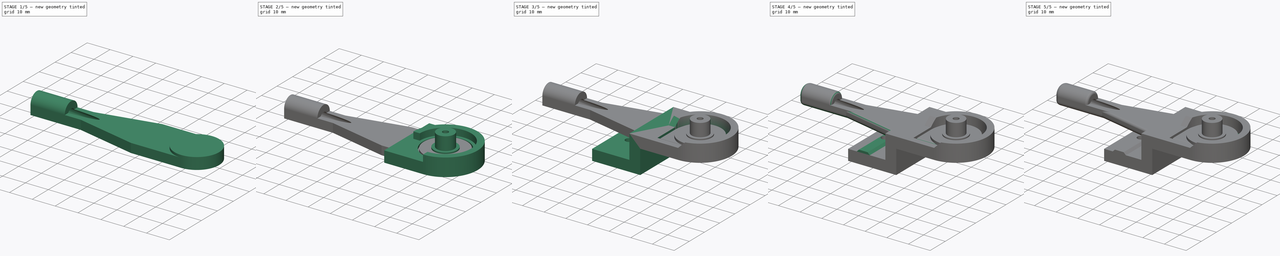
[diagram: build sequence overview — one tinted view per stage of 5, left to right]
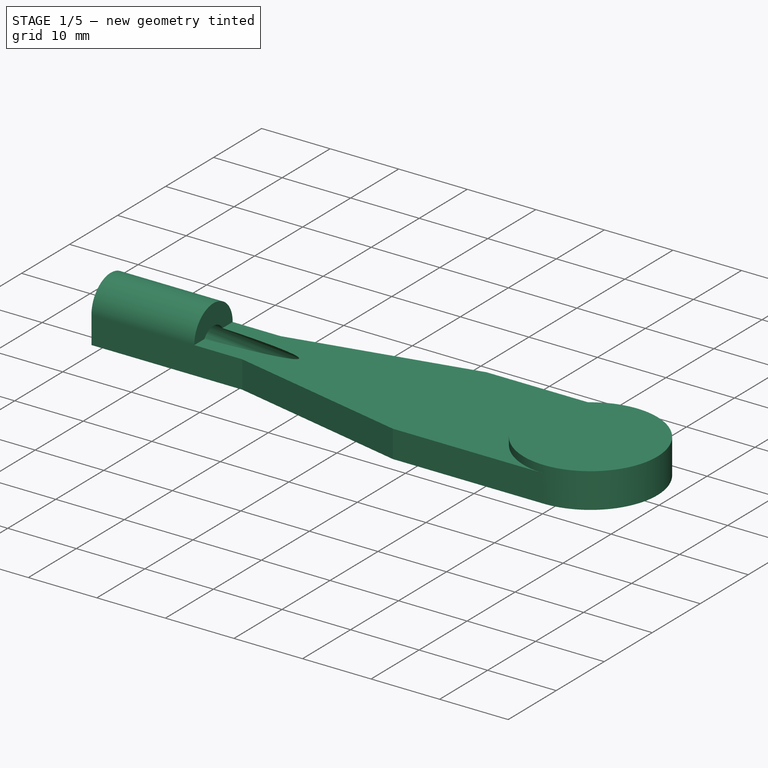
[diagram: stage 1 of 5 — iso view after this stage's code; geometry added in this stage tinted green]
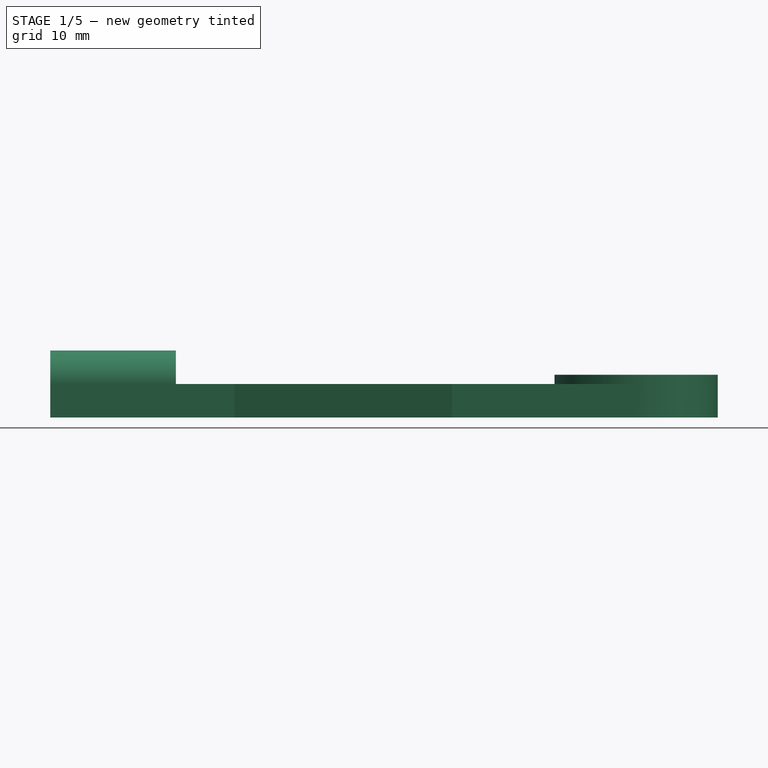
[diagram: stage 1 of 5 — front view after this stage's code; geometry added in this stage tinted green]
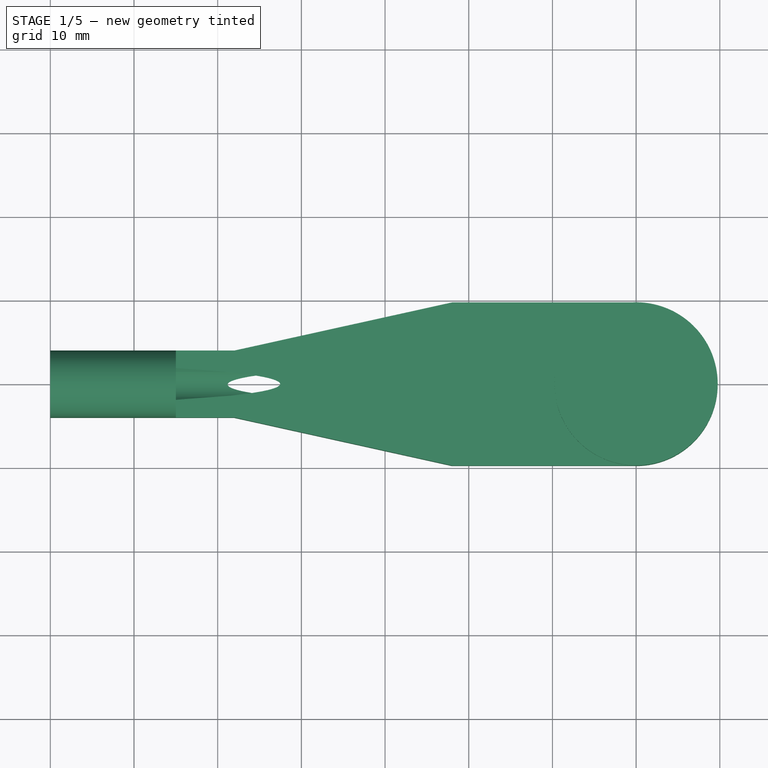
[diagram: stage 1 of 5 — top view after this stage's code; geometry added in this stage tinted green]
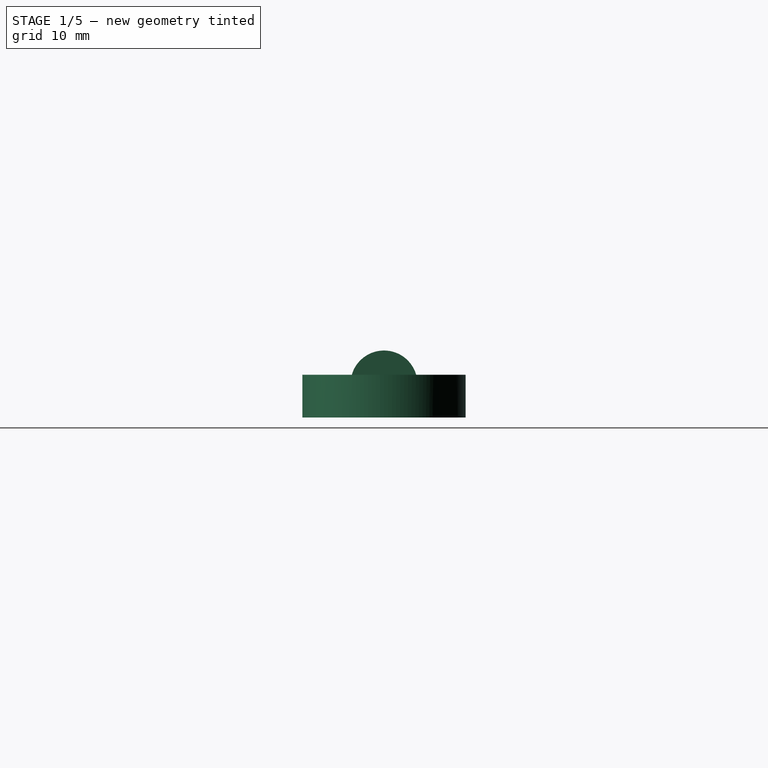
[diagram: stage 1 of 5 — right view after this stage's code; geometry added in this stage tinted green]
FCSTD DOCUMENT  (FreeCAD 1.1R20260223 (Git shallow))
Label: FilamentSupportArm
Comment: An arm on top of the printer that prevents sagging of the PTFE tube
License: All rights reserved
LicenseURL: https://en.wikipedia.org/wiki/All_rights_reserved
objects: Sketcher::SketchObject×17, PartDesign::Pad×12, PartDesign::Pocket×5, PartDesign::Fillet×3, PartDesign::Body×3, App::Point×3, PartDesign::Chamfer×2, App::VarSet×1
note: 103 computed .brp shape members not serialized (recipe doc carries the construction recipe); baked Part::Feature solids carry a one-line shape summary decoded from their .brp

FEATURE [App::VarSet] VarSet
  ArmRadius = 70
  ArmScrewDiameter = 3.4
  ArmScrewHeadDiameter = 7.2
  ArmScrewHeadRecess = 1.4
  ArmScrewTappingDiameter = 2.6
  BearingInnerRing = 8
  BearingOuterRing = 23
  BearingPlasticRingCoupling = 0.6
  BearingRecess = 4
  BearingRingWidth = 2.5
  BearingSuportMarginHeight = 3
  BearingWidth = 7
  LowerCoverDiameter = 19.5
  LowerCoverThickness = 1.1
  OuterStuffing = 3
  PlasticGrip = 0.2
  SupportThickness = 5
  Thickness = 4
  TubeDiameter = 4.5
  TubeGuideLength = 15
  TubeOuterEdge = 8
  armCoverThickness = 2.6
  expr: BearingSuportMarginHeight = BearingWidth - BearingRecess
  expr: LowerCoverDiameter = BearingOuterRing - BearingRingWidth - 1 mm
FEATURE [Sketcher::SketchObject] Sketch
  ArcFitTolerance = 1e-06
  AttachmentSupport = -> [XY_Plane]
  ExternalTypes = [0]
  FullyConstrained = true
  MakeInternals = false
  MapMode = 5
  expr: Constraints[11] = VarSet.TubeOuterEdge
  expr: Constraints[18] = VarSet.ArmRadius
  expr: Constraints[1] = VarSet.BearingInnerRing + VarSet.BearingRingWidth
  expr: Constraints[22] = VarSet.LowerCoverDiameter
  sketch-geometry (9):
    g0: Circle [constr] CenterX=0 CenterY=0 CenterZ=0 NormalX=0 NormalY=0 NormalZ=1 AngleXU=0 Radius=5.25
    g1: LineSegment StartX=0 StartY=9.75 StartZ=0 EndX=-22 EndY=9.75 EndZ=0
    g2: LineSegment StartX=-1.8e-15 StartY=-9.75 StartZ=0 EndX=-22 EndY=-9.75 EndZ=0
    g3: LineSegment StartX=-70 StartY=4 StartZ=0 EndX=-48 EndY=4 EndZ=0
    g4: LineSegment StartX=-70 StartY=-4 StartZ=0 EndX=-48 EndY=-4 EndZ=0
    g5: LineSegment StartX=-48 StartY=4 StartZ=0 EndX=-22 EndY=9.75 EndZ=0
    g6: LineSegment StartX=-22 StartY=-9.75 StartZ=0 EndX=-48 EndY=-4 EndZ=0
    g7: LineSegment StartX=-70 StartY=4 StartZ=0 EndX=-70 EndY=-4 EndZ=0
    g8: ArcOfCircle CenterX=0 CenterY=0 CenterZ=0 NormalX=0 NormalY=0 NormalZ=1 AngleXU=0 Radius=9.75 StartAngle=4.71239 EndAngle=7.85398
  constraints (25):
    c: Coincident(g0,g-1)
    c: Diameter(g0) = 10.5
    c: Horizontal(g1)
    c: Horizontal(g2)
    c: Equal(g2,g1)
    c: Horizontal(g3)
    c: Horizontal(g4)
    c: Equal(g4,g3)
    c: Equal(g3,g1)
    c: Distance(g1) = 22
    c: Symmetric(g3,g4,g-1)
    c: DistanceY(g4,g3) = 8
    c: Coincident(g5,g3)
    c: Coincident(g5,g1)
    c: Coincident(g6,g2)
    c: Coincident(g6,g4)
    c: Coincident(g7,g3)
    c: Coincident(g7,g4)
    c: DistanceX(g4,g0) = 70
    c: Coincident(g8,g0)
    c: PointOnObject(g8,g-2)
    c: PointOnObject(g8,g-2)
    c: Diameter(g8) = 19.5
    c: Coincident(g1,g8)
    c: Coincident(g2,g8)
FEATURE [PartDesign::Pad] Pad  label="Body of Arm"
  Direction = (0,0,1)
  Length = 4
  Length2 = 10
  Profile = -> Sketch
  ReferenceAxis = -> Sketch [N_Axis]
  Refine = true
  SideType = 0
  Suppressed = false
  Type = 0
  Type2 = 0
  expr: Length = VarSet.Thickness
FEATURE [Sketcher::SketchObject] Sketch003
  ArcFitTolerance = 1e-06
  AttachmentSupport = -> [Pad]
  ExternalGeometry = -> [Pad]
  ExternalTypes = [0]
  FullyConstrained = true
  MakeInternals = false
  MapMode = 5
  Placement = pos=(-70,0,0) rot=(0.57735,-0.57735,-0.57735;2.0944rad)
  expr: Constraints[1] = VarSet.TubeOuterEdge / 2
  sketch-geometry (3):
    g0: LineSegment [constr] StartX=0 StartY=0 StartZ=0 EndX=2.221e-13 EndY=4 EndZ=0
    g1: ArcOfCircle CenterX=2.221e-13 CenterY=4 CenterZ=0 NormalX=0 NormalY=0 NormalZ=1 AngleXU=0 Radius=4 StartAngle=4.19e-14 EndAngle=3.14159
    g2: LineSegment StartX=-4 StartY=4 StartZ=0 EndX=4 EndY=4 EndZ=0
  constraints (7):
    c: Coincident(g0,g-1)
    c: Distance(g0) = 4
    c: Coincident(g1,g0)
    c: Coincident(g2,g1)
    c: Coincident(g2,g1)
    c: Coincident(g1,g-4)
    c: Coincident(g1,g-3)
FEATURE [PartDesign::Pad] Pad003  label="Tube Guide"
  BaseFeature = -> Pad
  Direction = (-1,0,0)
  Length = 15
  Length2 = 10
  Profile = -> Sketch003
  ReferenceAxis = -> Sketch003 [N_Axis]
  Refine = true
  Reversed = true
  SideType = 0
  Suppressed = false
  Type = 0
  Type2 = 0
  expr: Length = VarSet.TubeGuideLength
FEATURE [Sketcher::SketchObject] Sketch004
  ArcFitTolerance = 1e-06
  AttachmentOffset = pos=(0,0,1) rot=(1,0,0;-0.08203rad)
  AttachmentSupport = -> [Pad003]
  ExternalGeometry = -> [Pad003]
  ExternalTypes = [0]
  FullyConstrained = true
  MakeInternals = false
  MapMode = 5
  Placement = pos=(-71,0,0) rot=(-0.560904,0.560904,0.608911;4.23548rad)
  expr: Constraints[1] = VarSet.TubeDiameter
  sketch-geometry (1):
    g0: Circle CenterX=1e-16 CenterY=4.06849 CenterZ=0 NormalX=0 NormalY=0 NormalZ=1 AngleXU=0 Radius=2.25
  constraints (2):
    c: Coincident(g0,g-3)
    c: Diameter(g0) = 4.5
FEATURE [PartDesign::Pocket] Pocket  label="Tube Passage"
  BaseFeature = -> Pad003
  Direction = (0.996637,0,-0.0819385)
  Length = 100
  Length2 = 5
  Profile = -> Sketch004
  ReferenceAxis = -> Sketch004 [N_Axis]
  Refine = true
  SideType = 0
  Suppressed = false
  Type = 0
  Type2 = 0
FEATURE [Sketcher::SketchObject] Sketch011
  ArcFitTolerance = 1e-06
  AttachmentSupport = -> [Pocket]
  ExternalTypes = [0]
  FullyConstrained = true
  MakeInternals = false
  MapMode = 5
  Placement = pos=(0,0,4) rot=(0,0,1;0rad)
  expr: Constraints[1] = VarSet.BearingOuterRing - VarSet.BearingRingWidth - 1 mm
  sketch-geometry (1):
    g0: Circle CenterX=0 CenterY=0 CenterZ=0 NormalX=0 NormalY=0 NormalZ=1 AngleXU=0 Radius=9.75
  constraints (2):
    c: Coincident(g0,g-1)
    c: Diameter(g0) = 19.5
FEATURE [PartDesign::Pad] Pad008  label="Lower Bearing Cover"
  BaseFeature = -> Pocket
  Direction = (0,0,1)
  Length = 1.1
  Length2 = 10
  Profile = -> Sketch011
  ReferenceAxis = -> Sketch011 [N_Axis]
  Refine = true
  SideType = 0
  Suppressed = false
  Type = 0
  Type2 = 0
  expr: Length = VarSet.LowerCoverThickness
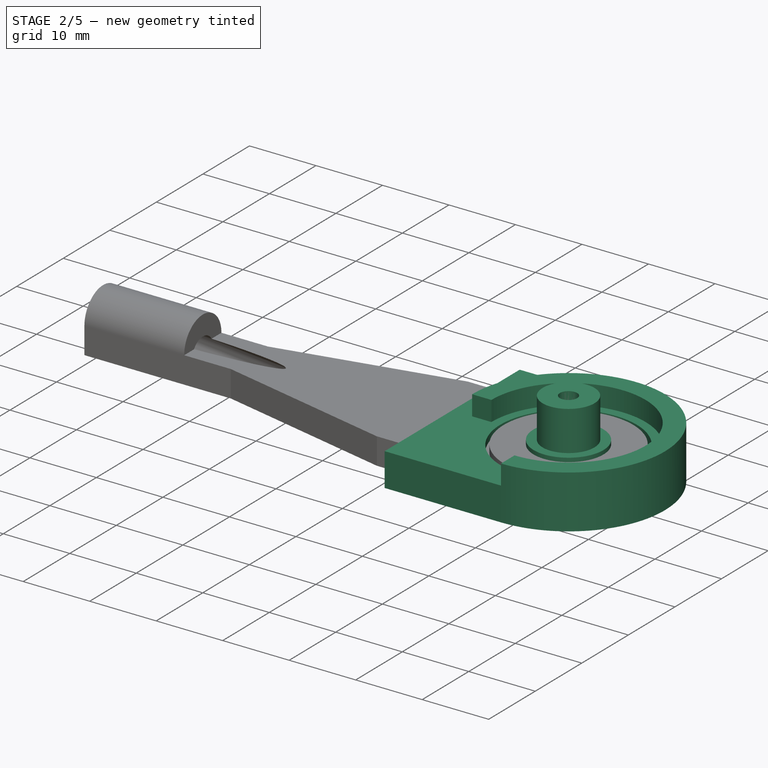
[diagram: stage 2 of 5 — iso view after this stage's code; geometry added in this stage tinted green]
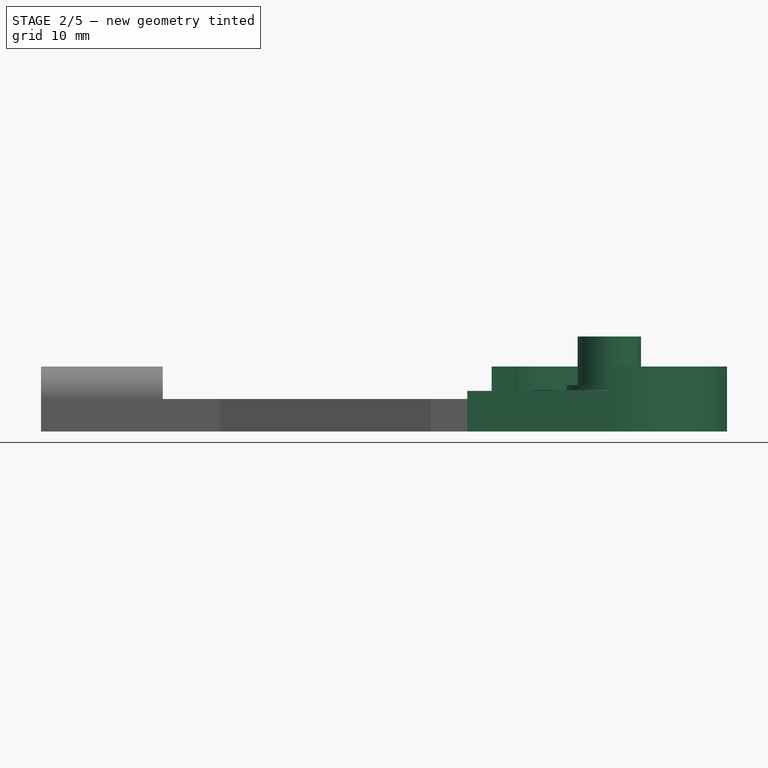
[diagram: stage 2 of 5 — front view after this stage's code; geometry added in this stage tinted green]
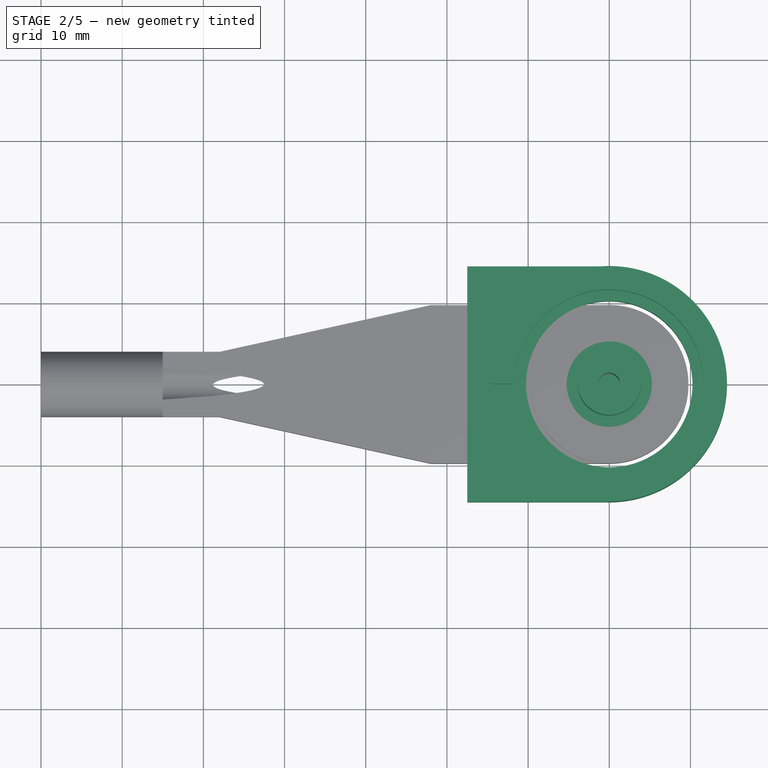
[diagram: stage 2 of 5 — top view after this stage's code; geometry added in this stage tinted green]
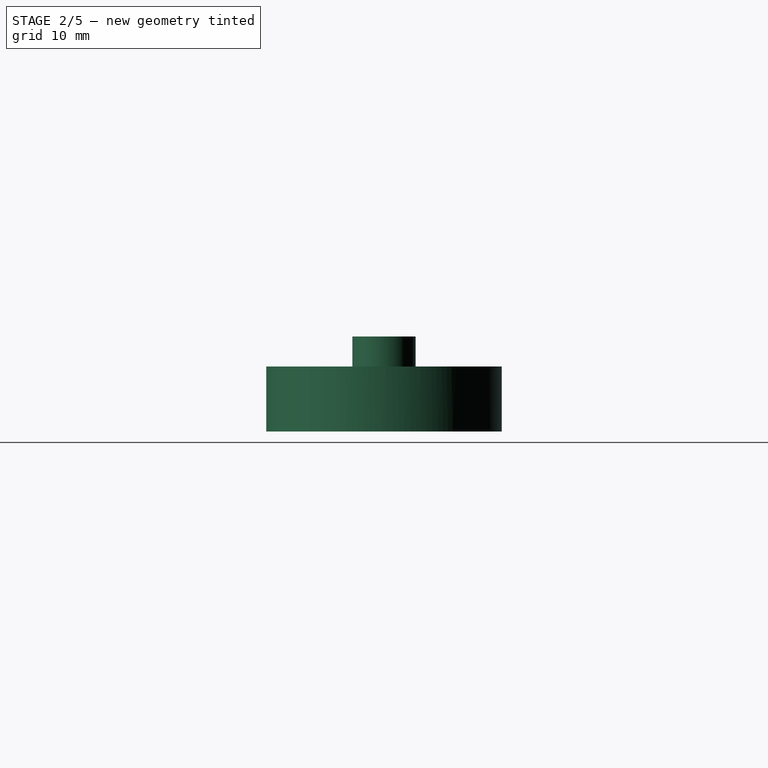
[diagram: stage 2 of 5 — right view after this stage's code; geometry added in this stage tinted green]
FEATURE [Sketcher::SketchObject] Sketch007
  ArcFitTolerance = 1e-06
  AttachmentSupport = -> [XY_Plane002]
  ExternalTypes = [0]
  FullyConstrained = true
  MakeInternals = false
  MapMode = 5
  expr: Constraints[11] = VarSet.BearingOuterRing / 2 + VarSet.OuterStuffing * 2
  expr: Constraints[1] = VarSet.BearingOuterRing - VarSet.BearingRingWidth
  expr: Constraints[21] = VarSet.OuterStuffing
  expr: Constraints[3] = VarSet.BearingOuterRing
  sketch-geometry (8):
    g0: Circle CenterX=0 CenterY=0 CenterZ=0 NormalX=0 NormalY=0 NormalZ=1 AngleXU=0 Radius=10.25
    g1: Circle [constr] CenterX=0 CenterY=0 CenterZ=0 NormalX=0 NormalY=0 NormalZ=1 AngleXU=0 Radius=11.5
    g2: LineSegment StartX=4.4e-15 StartY=14.5 StartZ=0 EndX=-17.5 EndY=14.5 EndZ=0
    g3: LineSegment StartX=-2.7e-15 StartY=-14.5 StartZ=0 EndX=-17.5 EndY=-14.5 EndZ=0
    g4: LineSegment [constr] StartX=14.5 StartY=0 StartZ=0 EndX=11.5 EndY=0 EndZ=0
    g5: LineSegment [constr] StartX=0 StartY=0 StartZ=0 EndX=-17.5 EndY=0 EndZ=0
    g6: LineSegment StartX=-17.5 StartY=14.5 StartZ=0 EndX=-17.5 EndY=-14.5 EndZ=0
    g7: ArcOfCircle CenterX=0 CenterY=0 CenterZ=0 NormalX=0 NormalY=0 NormalZ=1 AngleXU=0 Radius=14.5 StartAngle=4.71239 EndAngle=7.85398
  constraints (23):
    c: Coincident(g0,g-1)
    c: Diameter(g0) = 20.5
    c: Coincident(g1,g0)
    c: Diameter(g1) = 23
    c: Horizontal(g2)
    c: Horizontal(g3)
    c: Equal(g3,g2)
    c: Horizontal(g4)
    c: PointOnObject(g4,g1)
    c: Coincident(g5,g0)
    c: PointOnObject(g5,g-1)
    c: Distance(g5) = 17.5
    c: Coincident(g6,g3)
    c: Coincident(g6,g2)
    c: PointOnObject(g5,g6)
    c: Coincident(g7,g0)
    c: PointOnObject(g7,g-2)
    c: PointOnObject(g7,g-2)
    c: PointOnObject(g4,g7)
    c: Coincident(g7,g2)
    c: Coincident(g7,g3)
    c: Distance(g4) = 3
    c: PointOnObject(g4,g-1)
FEATURE [PartDesign::Pad] Pad005  label="Bearing Support"
  Direction = (0,0,1)
  Length = 5
  Length2 = 10
  Profile = -> Sketch007
  ReferenceAxis = -> Sketch007 [N_Axis]
  Refine = true
  SideType = 0
  Suppressed = false
  Type = 0
  Type2 = 0
  expr: Length = VarSet.SupportThickness
FEATURE [Sketcher::SketchObject] Sketch008
  ArcFitTolerance = 1e-06
  AttachmentSupport = -> [Pad005]
  ExternalTypes = [0]
  FullyConstrained = true
  MakeInternals = false
  MapMode = 5
  Placement = pos=(0,0,5) rot=(0,0,1;0rad)
  expr: Constraints[1] = VarSet.BearingOuterRing + VarSet.OuterStuffing * 2
  expr: Constraints[7] = VarSet.BearingOuterRing + VarSet.PlasticGrip
  sketch-geometry (4):
    g0: ArcOfCircle CenterX=0 CenterY=0 CenterZ=0 NormalX=0 NormalY=0 NormalZ=1 AngleXU=0 Radius=14.5 StartAngle=4.71239 EndAngle=9.42478
    g1: ArcOfCircle CenterX=0 CenterY=0 CenterZ=0 NormalX=0 NormalY=0 NormalZ=1 AngleXU=0 Radius=11.6 StartAngle=4.71239 EndAngle=9.42478
    g2: LineSegment StartX=-14.5 StartY=0 StartZ=0 EndX=-11.6 EndY=4.3e-15 EndZ=0
    g3: LineSegment StartX=0 StartY=-14.5 StartZ=0 EndX=0 EndY=-11.6 EndZ=0
  constraints (12):
    c: Coincident(g0,g-1)
    c: Diameter(g0) = 29
    c: PointOnObject(g0,g-1)
    c: PointOnObject(g0,g-2)
    c: Coincident(g1,g0)
    c: PointOnObject(g1,g-1)
    c: PointOnObject(g1,g-2)
    c: Diameter(g1) = 23.2
    c: Coincident(g2,g0)
    c: Coincident(g2,g1)
    c: Coincident(g3,g0)
    c: Coincident(g3,g1)
FEATURE [PartDesign::Pad] Pad006  label="Bearing Support Margin"
  BaseFeature = -> Pad005
  Direction = (0,0,1)
  Length = 3
  Length2 = 10
  Profile = -> Sketch008
  ReferenceAxis = -> Sketch008 [N_Axis]
  Refine = true
  SideType = 0
  Suppressed = false
  Type = 0
  Type2 = 0
  expr: Length = VarSet.BearingSuportMarginHeight
FEATURE [Sketcher::SketchObject] Sketch012
  ArcFitTolerance = 1e-06
  AttachmentSupport = -> [Pad008]
  ExternalTypes = [0]
  FullyConstrained = true
  MakeInternals = false
  MapMode = 5
  Placement = pos=(0,0,5.1) rot=(0,0,1;0rad)
  expr: Constraints[1] = VarSet.BearingInnerRing + VarSet.BearingRingWidth
  sketch-geometry (1):
    g0: Circle CenterX=0 CenterY=0 CenterZ=0 NormalX=0 NormalY=0 NormalZ=1 AngleXU=0 Radius=5.25
  constraints (2):
    c: Coincident(g0,g-1)
    c: Diameter(g0) = 10.5
FEATURE [PartDesign::Pad] Pad009  label="Inner Bearing Coupling"
  BaseFeature = -> Pad008
  Direction = (0,0,1)
  Length = 0.6
  Length2 = 10
  Profile = -> Sketch012
  ReferenceAxis = -> Sketch012 [N_Axis]
  Refine = true
  SideType = 0
  Suppressed = false
  Type = 0
  Type2 = 0
  expr: Length = VarSet.BearingPlasticRingCoupling
FEATURE [Sketcher::SketchObject] Sketch013
  ArcFitTolerance = 1e-06
  AttachmentSupport = -> [Pad009]
  ExternalTypes = [0]
  FullyConstrained = true
  MakeInternals = false
  MapMode = 5
  Placement = pos=(0,0,5.7) rot=(0,0,1;0rad)
  expr: Constraints[1] = VarSet.BearingInnerRing - VarSet.PlasticGrip
  sketch-geometry (1):
    g0: Circle CenterX=0 CenterY=0 CenterZ=0 NormalX=0 NormalY=0 NormalZ=1 AngleXU=0 Radius=3.9
  constraints (2):
    c: Coincident(g0,g-1)
    c: Diameter(g0) = 7.8
FEATURE [PartDesign::Pad] Pad010  label="Inner Bearing Axis"
  BaseFeature = -> Pad009
  Direction = (0,0,1)
  Length = 6
  Length2 = 10
  Profile = -> Sketch013
  ReferenceAxis = -> Sketch013 [N_Axis]
  Refine = true
  SideType = 0
  Suppressed = false
  Type = 0
  Type2 = 0
  expr: Length = VarSet.BearingWidth - VarSet.BearingPlasticRingCoupling - 2 * VarSet.PlasticGrip
FEATURE [PartDesign::Body] Body002  label="Gantry Support"
  AllowCompound = false
  Group = -> [Sketch007,Pad005,Sketch008,Pad006,Sketch009,Pocket002,Chamfer,Sketch014,Pad011,Sketch015,Pad012,Sketch016,Pocket003,Sketch017,Pad013,Chamfer001]
  Origin = -> Origin002
  Tip = -> Chamfer001
FEATURE [App::Point] Origin003  label="Origin"
  Role = Origin
FEATURE [App::Point] Origin004  label="Origin"
  Role = Origin
FEATURE [App::Point] Origin005  label="Origin"
  Role = Origin
FEATURE [Sketcher::SketchObject] Sketch018
  ArcFitTolerance = 1e-06
  AttachmentSupport = -> [Pad010]
  ExternalTypes = [0]
  FullyConstrained = true
  MakeInternals = false
  MapMode = 5
  Placement = pos=(0,0,11.7) rot=(0,0,1;0rad)
  expr: Constraints[1] = VarSet.ArmScrewTappingDiameter
  sketch-geometry (1):
    g0: Circle CenterX=0 CenterY=0 CenterZ=0 NormalX=0 NormalY=0 NormalZ=1 AngleXU=0 Radius=1.3
  constraints (2):
    c: Coincident(g0,g-1)
    c: Diameter(g0) = 2.6
FEATURE [PartDesign::Pocket] Pocket004  label="Inner Bearing Axis Screw"
  BaseFeature = -> Pad010
  Direction = (0,0,-1)
  Length = 10
  Length2 = 5
  Profile = -> Sketch018
  ReferenceAxis = -> Sketch018 [N_Axis]
  Refine = true
  SideType = 0
  Suppressed = false
  Type = 0
  Type2 = 0
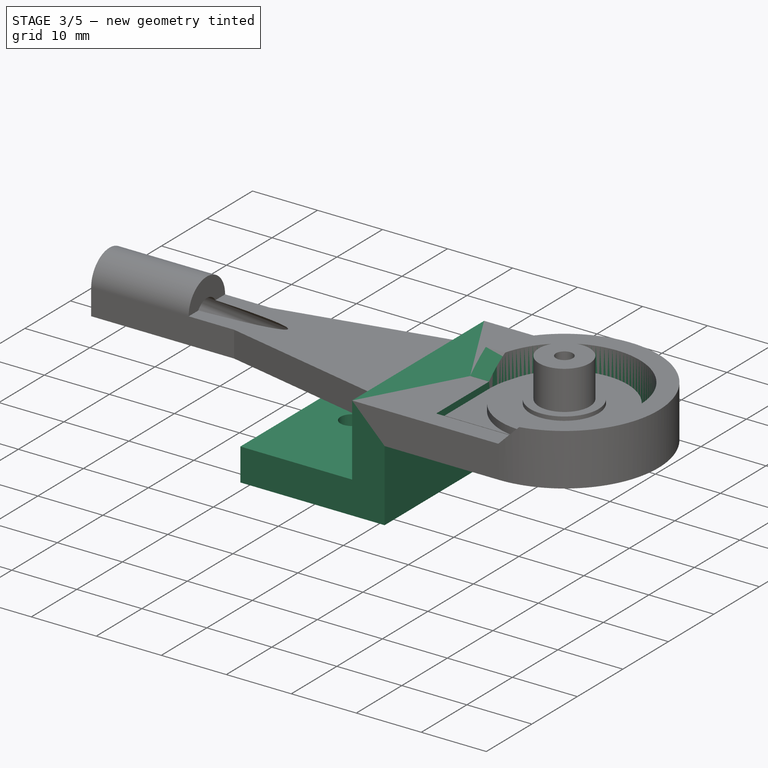
[diagram: stage 3 of 5 — iso view after this stage's code; geometry added in this stage tinted green]
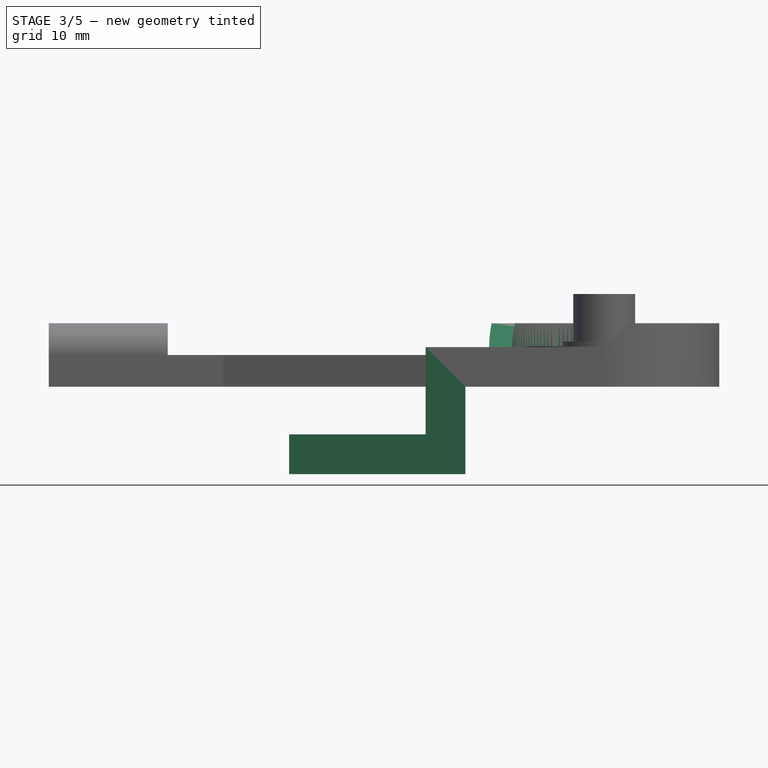
[diagram: stage 3 of 5 — front view after this stage's code; geometry added in this stage tinted green]
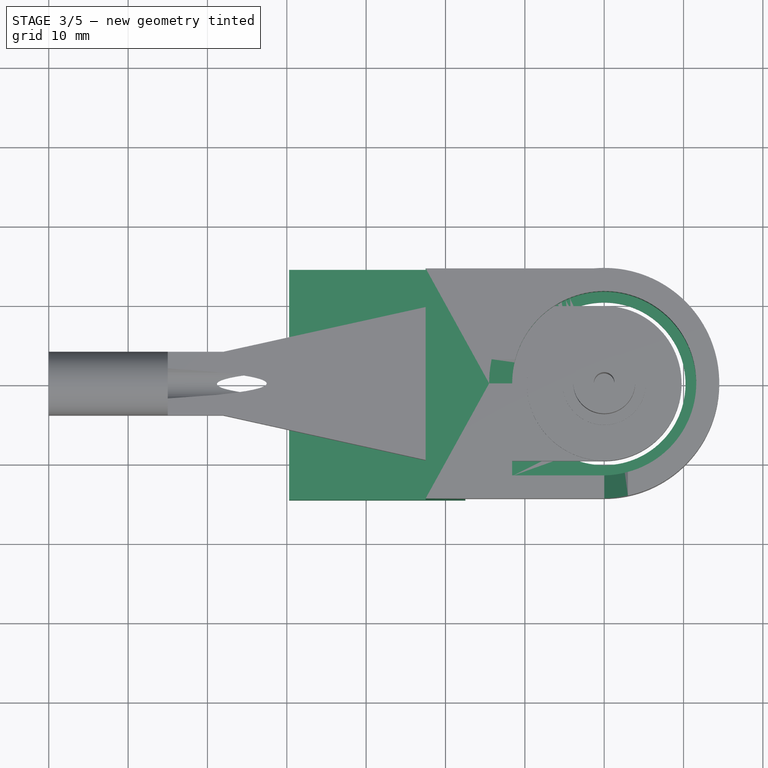
[diagram: stage 3 of 5 — top view after this stage's code; geometry added in this stage tinted green]
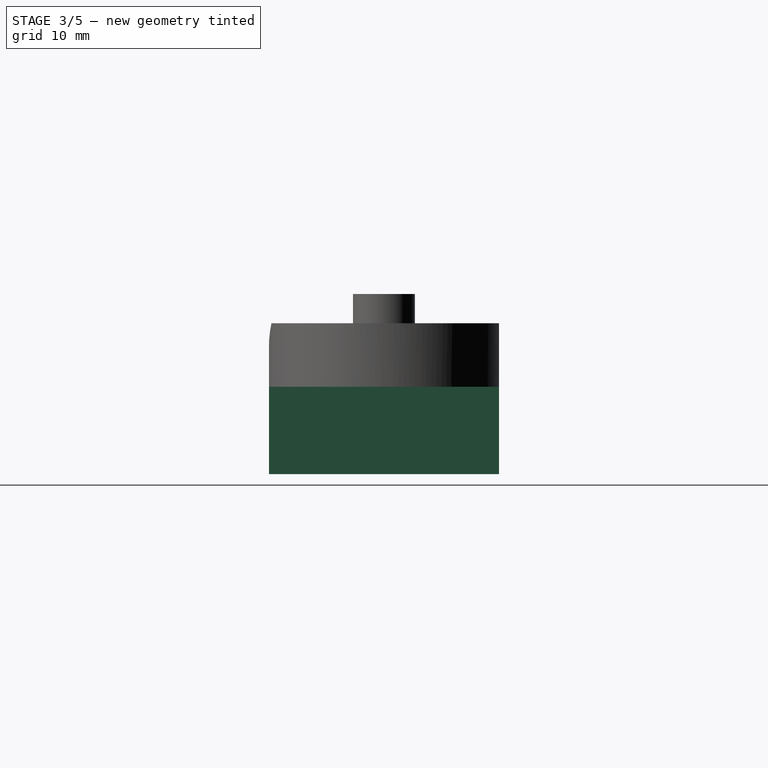
[diagram: stage 3 of 5 — right view after this stage's code; geometry added in this stage tinted green]
FEATURE [Sketcher::SketchObject] Sketch009
  ArcFitTolerance = 1e-06
  AttachmentSupport = -> [Pad006]
  ExternalGeometry = -> [Pad006]
  ExternalTypes = [0]
  FullyConstrained = true
  MakeInternals = false
  MapMode = 5
  Placement = pos=(0,0,5) rot=(0,0,1;0rad)
  sketch-geometry (3):
    g0: ArcOfCircle CenterX=0 CenterY=0 CenterZ=0 NormalX=0 NormalY=0 NormalZ=1 AngleXU=0 Radius=11.6 StartAngle=4.71239 EndAngle=9.42478
    g1: LineSegment StartX=-11.6 StartY=4.3e-15 StartZ=0 EndX=-11.6 EndY=-11.6 EndZ=0
    g2: LineSegment StartX=-2.1e-15 StartY=-11.6 StartZ=0 EndX=-11.6 EndY=-11.6 EndZ=0
  constraints (8):
    c: Coincident(g0,g-1)
    c: Coincident(g0,g-3)
    c: PointOnObject(g0,g-2)
    c: Coincident(g1,g0)
    c: Vertical(g1)
    c: Coincident(g2,g0)
    c: Horizontal(g2)
    c: Coincident(g1,g2)
FEATURE [PartDesign::Pocket] Pocket002  label="Bearing Recess"
  BaseFeature = -> Pad006
  Direction = (0,0,-1)
  Length = 4
  Length2 = 5
  Profile = -> Sketch009
  ReferenceAxis = -> Sketch009 [N_Axis]
  Refine = true
  SideType = 0
  Suppressed = false
  Type = 0
  Type2 = 0
  expr: Length = VarSet.BearingRecess
FEATURE [PartDesign::Body] Body001  label="ArmCover"
  AllowCompound = false
  Group = -> [Sketch005,Pad004,Sketch006,Pocket001,Fillet,Sketch010,Pad007]
  Origin = -> Origin001
  Tip = -> Pad007
FEATURE [PartDesign::Chamfer] Chamfer  label="PrintRamp"
  Angle = 45
  Base = -> Pocket002 [Edge22,Edge24]
  BaseFeature = -> Pocket002
  ChamferType = 0
  FlipDirection = false
  Refine = true
  Size = 2.99
  Size2 = 1
  SupportTransform = false
  Suppressed = false
  UseAllEdges = false
  expr: Size = VarSet.BearingSuportMarginHeight - 0.01 mm
FEATURE [Sketcher::SketchObject] Sketch014
  ArcFitTolerance = 1e-06
  AttachmentSupport = -> [Chamfer]
  ExternalGeometry = -> [Chamfer]
  ExternalTypes = [0]
  FullyConstrained = true
  MakeInternals = false
  MapMode = 5
  Placement = pos=(-17.5,0,0) rot=(0.57735,-0.57735,-0.57735;2.0944rad)
  expr: Constraints[9] = VarSet.Thickness + 12 mm
  sketch-geometry (4):
    g0: LineSegment StartX=-14.5 StartY=5 StartZ=0 EndX=-14.5 EndY=-11 EndZ=0
    g1: LineSegment StartX=-14.5 StartY=-11 StartZ=0 EndX=14.5 EndY=-11 EndZ=0
    g2: LineSegment StartX=14.5 StartY=-11 StartZ=0 EndX=14.5 EndY=5 EndZ=0
    g3: LineSegment StartX=14.5 StartY=5 StartZ=0 EndX=-14.5 EndY=5 EndZ=0
  constraints (10):
    c: Coincident(g0,g1)
    c: Coincident(g1,g2)
    c: Coincident(g2,g3)
    c: Coincident(g3,g0)
    c: Vertical(g0)
    c: Vertical(g2)
    c: Horizontal(g1)
    c: Coincident(g0,g-3)
    c: Coincident(g2,g-3)
    c: Distance(g0) = 16
FEATURE [PartDesign::Pad] Pad011  label="Extruder Offset"
  BaseFeature = -> Chamfer
  Direction = (-1,0,0)
  Length = 5
  Length2 = 10
  Profile = -> Sketch014
  ReferenceAxis = -> Sketch014 [N_Axis]
  Refine = true
  SideType = 0
  Suppressed = false
  Type = 0
  Type2 = 0
  expr: Length = VarSet.SupportThickness
FEATURE [Sketcher::SketchObject] Sketch015
  ArcFitTolerance = 1e-06
  AttachmentSupport = -> [Pad011]
  ExternalGeometry = -> [Pad011]
  ExternalTypes = [0]
  FullyConstrained = true
  MakeInternals = false
  MapMode = 5
  Placement = pos=(0,0,-11) rot=(1,0,0;3.14159rad)
  expr: Constraints[12] = 4 mm + 3 mm
  expr: Constraints[9] = 7 mm + 6 mm + 4 mm + VarSet.PlasticGrip
  sketch-geometry (5):
    g0: LineSegment StartX=-22.5 StartY=14.5 StartZ=0 EndX=-39.7 EndY=14.5 EndZ=0
    g1: LineSegment StartX=-39.7 StartY=14.5 StartZ=0 EndX=-39.7 EndY=-14.5 EndZ=0
    g2: LineSegment StartX=-39.7 StartY=-14.5 StartZ=0 EndX=-22.5 EndY=-14.5 EndZ=0
    g3: LineSegment StartX=-22.5 StartY=-14.5 StartZ=0 EndX=-22.5 EndY=14.5 EndZ=0
    g4: Circle CenterX=-32.7 CenterY=0 CenterZ=0 NormalX=0 NormalY=0 NormalZ=1 AngleXU=0 Radius=1.75
  constraints (13):
    c: Coincident(g0,g1)
    c: Coincident(g1,g2)
    c: Coincident(g2,g3)
    c: Coincident(g3,g0)
    c: Horizontal(g0)
    c: Horizontal(g2)
    c: Vertical(g1)
    c: Coincident(g0,g-3)
    c: Coincident(g2,g-3)
    c: Distance(g2) = 17.2
    c: PointOnObject(g4,g-1)
    c: Diameter(g4) = 3.5
    c: DistanceX(g1,g4) = 7
FEATURE [PartDesign::Pad] Pad012  label="Extruder Fixing"
  BaseFeature = -> Pad011
  Direction = (0,0,-1)
  Length = 5
  Length2 = 10
  Profile = -> Sketch015
  ReferenceAxis = -> Sketch015 [N_Axis]
  Refine = true
  Reversed = true
  SideType = 0
  Suppressed = false
  Type = 0
  Type2 = 0
  expr: Length = VarSet.SupportThickness
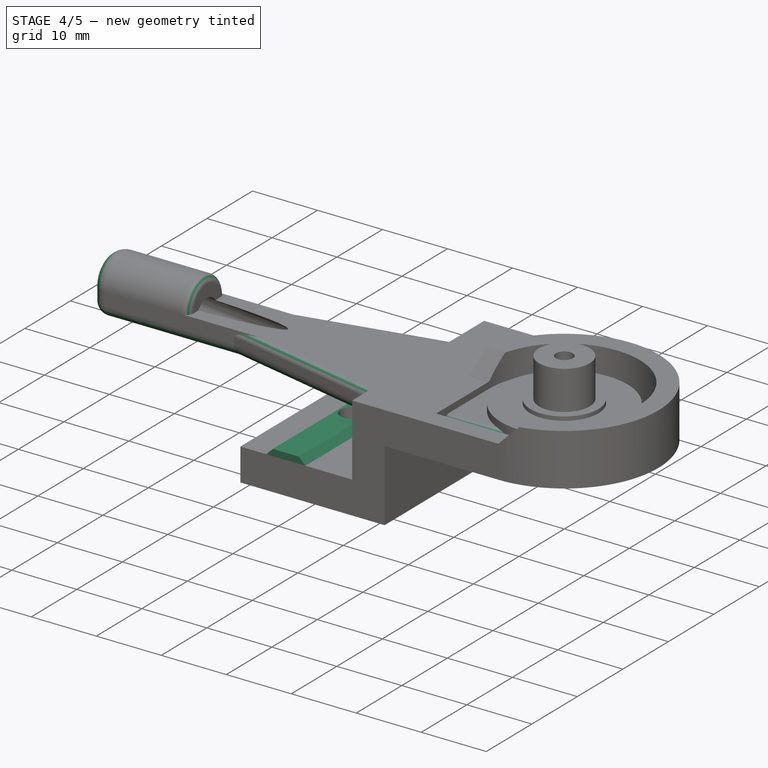
[diagram: stage 4 of 5 — iso view after this stage's code; geometry added in this stage tinted green]
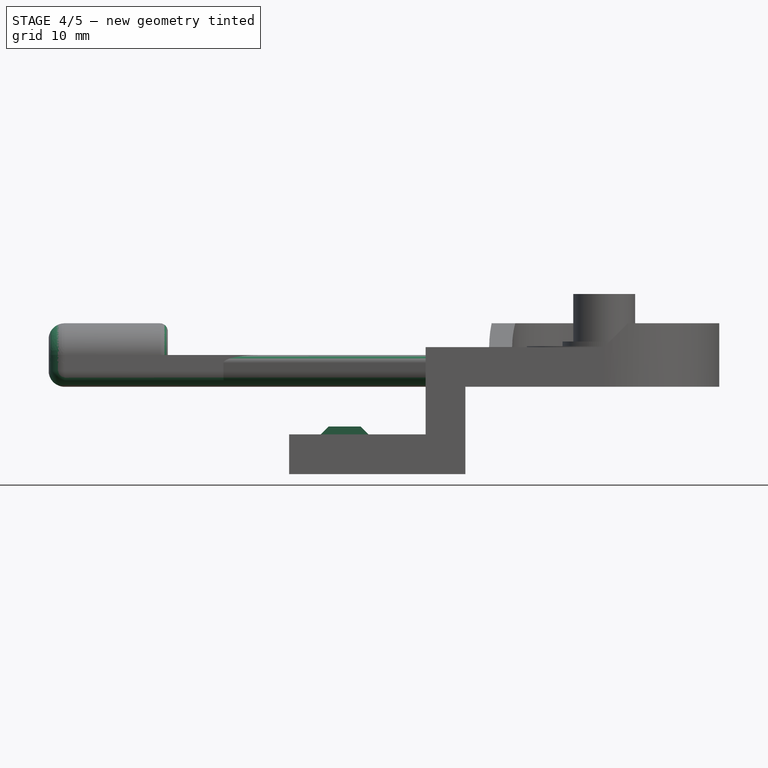
[diagram: stage 4 of 5 — front view after this stage's code; geometry added in this stage tinted green]
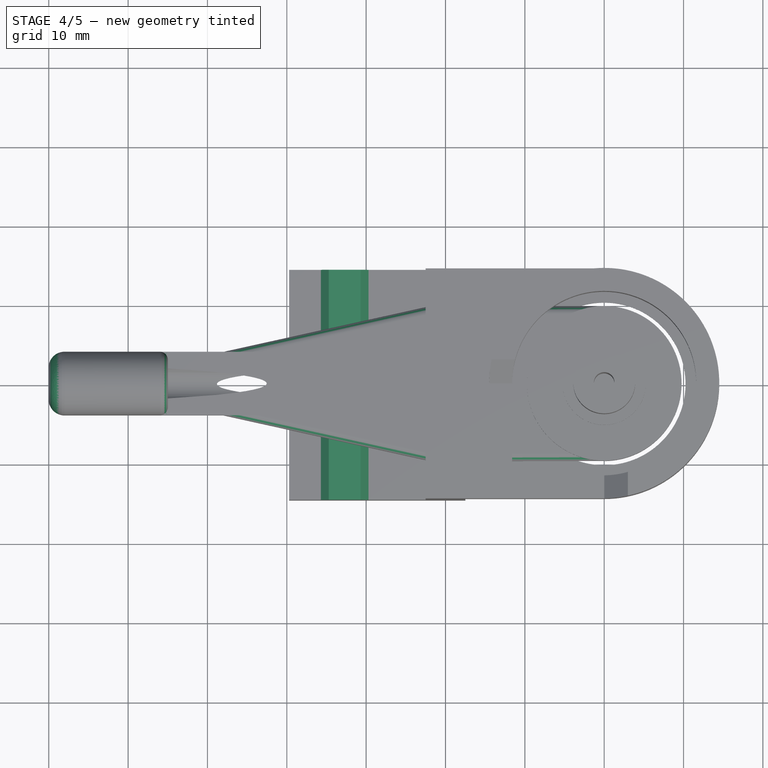
[diagram: stage 4 of 5 — top view after this stage's code; geometry added in this stage tinted green]
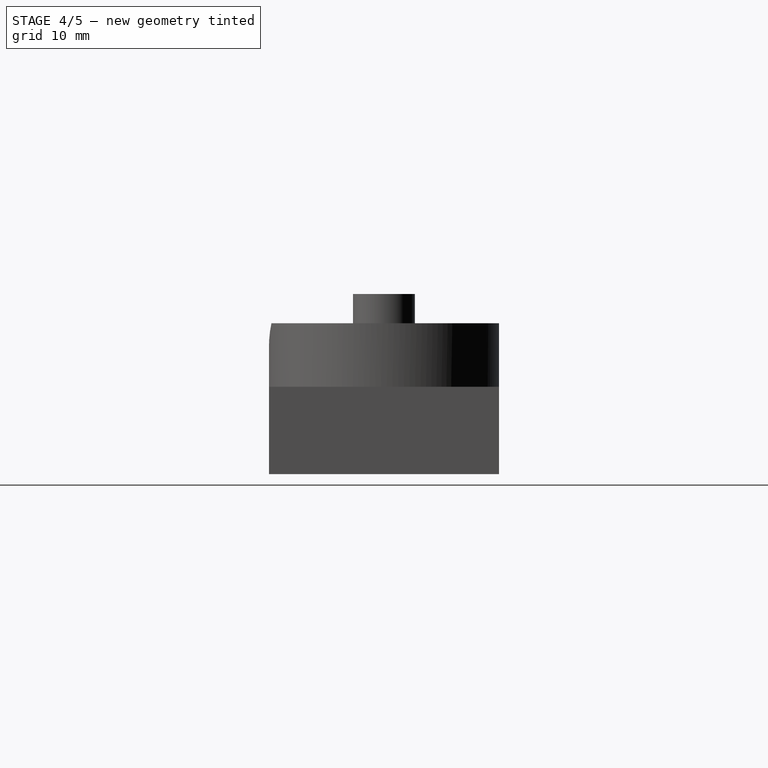
[diagram: stage 4 of 5 — right view after this stage's code; geometry added in this stage tinted green]
FEATURE [Sketcher::SketchObject] Sketch016
  ArcFitTolerance = 1e-06
  AttachmentSupport = -> [Pad012]
  ExternalGeometry = -> [Pad012]
  ExternalTypes = [0]
  FullyConstrained = false
  MakeInternals = false
  MapMode = 5
  Placement = pos=(0,0,-11) rot=(1,0,0;3.14159rad)
  sketch-geometry (1):
    g0: Circle CenterX=-32.7 CenterY=0 CenterZ=0 NormalX=0 NormalY=0 NormalZ=1 AngleXU=0 Radius=4.75
  constraints (1):
    c: Diameter(g0) = 9.5
FEATURE [PartDesign::Pocket] Pocket003  label="Extruder Screw Pocket"
  BaseFeature = -> Pad012
  Direction = (0,0,1)
  Length = 2.9
  Length2 = 5
  Profile = -> Sketch016
  ReferenceAxis = -> Sketch016 [N_Axis]
  Refine = true
  SideType = 0
  Suppressed = false
  Type = 0
  Type2 = 0
FEATURE [Sketcher::SketchObject] Sketch017
  ArcFitTolerance = 1e-06
  AttachmentSupport = -> [Pocket003]
  ExternalGeometry = -> [Pocket003]
  ExternalTypes = [0]
  FullyConstrained = true
  MakeInternals = false
  MapMode = 5
  Placement = pos=(0,0,-6) rot=(0,0,1;0rad)
  sketch-geometry (6):
    g0: LineSegment [constr] StartX=-32.7 StartY=14.5 StartZ=0 EndX=-32.7 EndY=-14.5 EndZ=0
    g1: LineSegment StartX=-35.7 StartY=14.5 StartZ=0 EndX=-35.7 EndY=-14.5 EndZ=0
    g2: LineSegment StartX=-35.7 StartY=-14.5 StartZ=0 EndX=-29.7 EndY=-14.5 EndZ=0
    g3: LineSegment StartX=-29.7 StartY=-14.5 StartZ=0 EndX=-29.7 EndY=14.5 EndZ=0
    g4: LineSegment StartX=-29.7 StartY=14.5 StartZ=0 EndX=-35.7 EndY=14.5 EndZ=0
    g5: Circle CenterX=-32.7 CenterY=0 CenterZ=0 NormalX=0 NormalY=0 NormalZ=1 AngleXU=0 Radius=1.75
  constraints (17):
    c: Vertical(g0)
    c: PointOnObject(g0,g-4)
    c: PointOnObject(g0,g-5)
    c: PointOnObject(g-3,g0)
    c: Coincident(g1,g2)
    c: Coincident(g2,g3)
    c: Coincident(g3,g4)
    c: Coincident(g4,g1)
    c: Vertical(g1)
    c: Vertical(g3)
    c: Horizontal(g2)
    c: Horizontal(g4)
    c: Symmetric(g1,g3,g0)
    c: Distance(g2) = 6
    c: PointOnObject(g2,g-5)
    c: Coincident(g5,g-3)
    c: Equal(g5,g-3)
FEATURE [PartDesign::Pad] Pad013  label="Extruder Guide"
  BaseFeature = -> Pocket003
  Direction = (0,0,1)
  Length = 1
  Length2 = 10
  Profile = -> Sketch017
  ReferenceAxis = -> Sketch017 [N_Axis]
  Refine = true
  SideType = 0
  Suppressed = false
  Type = 0
  Type2 = 0
FEATURE [PartDesign::Chamfer] Chamfer001  label="Extruder Guide Finishing"
  Angle = 45
  Base = -> Pad013 [Edge61,Edge64]
  BaseFeature = -> Pad013
  ChamferType = 0
  FlipDirection = false
  Refine = true
  Size = 0.99
  Size2 = 1
  SupportTransform = false
  Suppressed = false
  UseAllEdges = false
FEATURE [PartDesign::Fillet] Fillet001  label="Edge Roundings"
  Base = -> Pocket004 [Edge4,Edge26,Edge13,Edge25,Edge38]
  BaseFeature = -> Pocket004
  Radius = 1
  Refine = true
  SupportTransform = false
  Suppressed = false
  UseAllEdges = false
FEATURE [PartDesign::Fillet] Fillet002  label="Lower Edges"
  Base = -> Fillet001 [Edge18,Edge16,Edge17,Edge7,Edge3,Edge15,Edge14,Edge50]
  BaseFeature = -> Fillet001
  Radius = 2
  Refine = true
  SupportTransform = false
  Suppressed = false
  UseAllEdges = false
FEATURE [PartDesign::Body] Body  label="PTFE Tube Arm"
  AllowCompound = false
  Group = -> [Sketch,Pad,Sketch003,Pad003,Sketch004,Pocket,Sketch011,Pad008,Sketch012,Pad009,Sketch013,Pad010,Pocket004,Sketch018,Fillet001,Fillet002]
  Origin = -> Origin
  Tip = -> Fillet002
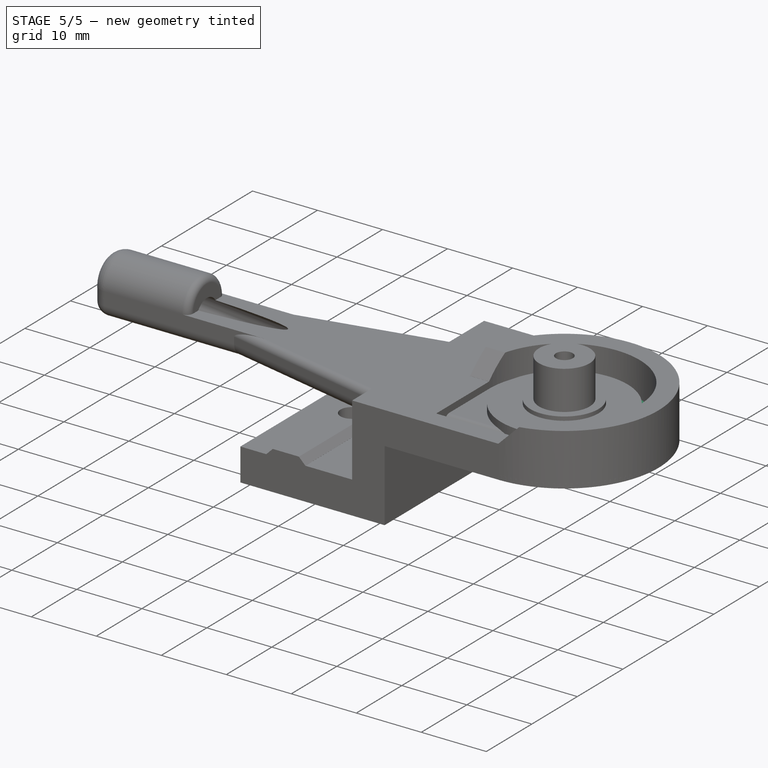
[diagram: stage 5 of 5 — iso view after this stage's code; geometry added in this stage tinted green]
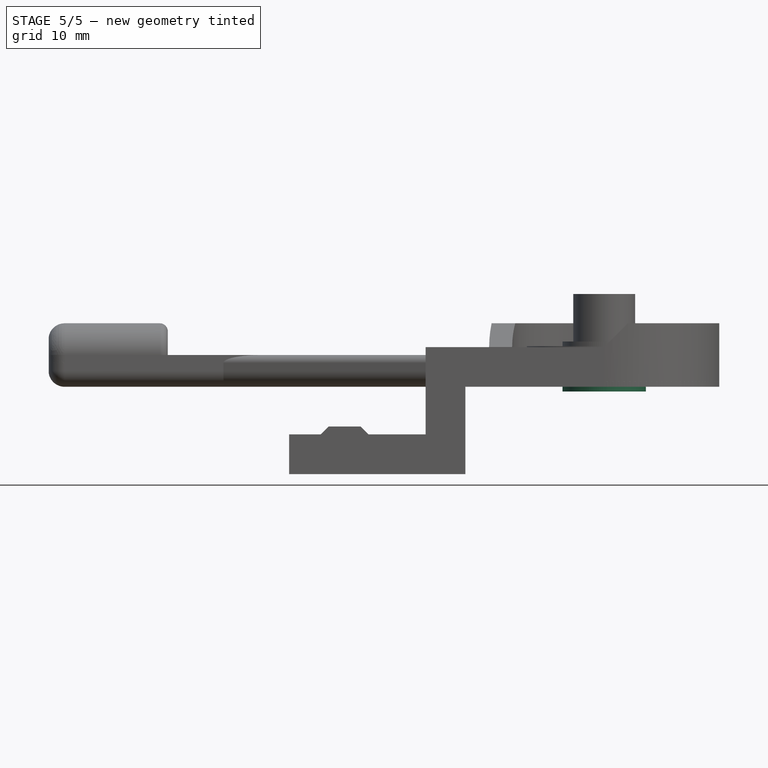
[diagram: stage 5 of 5 — front view after this stage's code; geometry added in this stage tinted green]
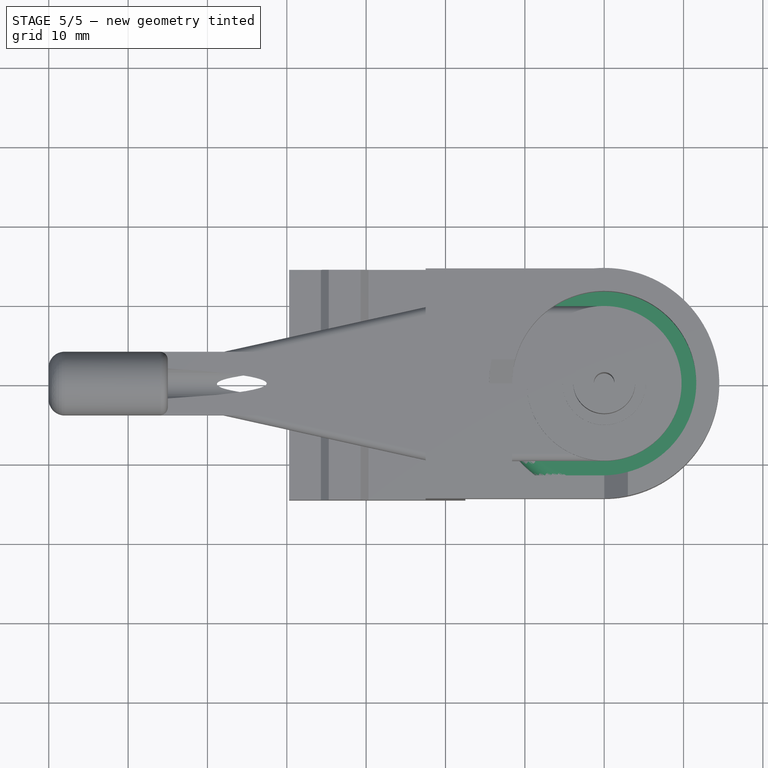
[diagram: stage 5 of 5 — top view after this stage's code; geometry added in this stage tinted green]
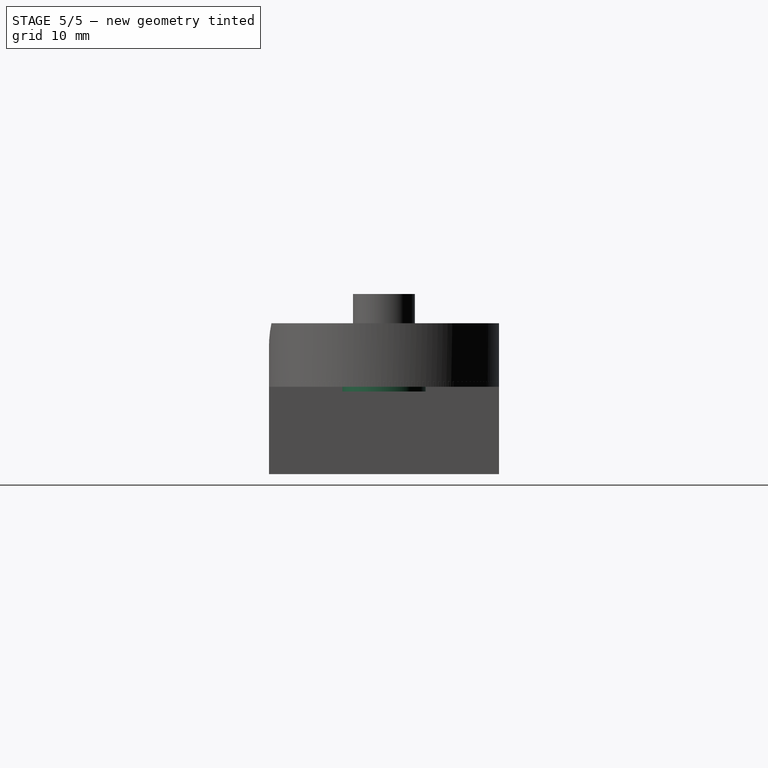
[diagram: stage 5 of 5 — right view after this stage's code; geometry added in this stage tinted green]
FEATURE [Sketcher::SketchObject] Sketch005
  ArcFitTolerance = 1e-06
  AttachmentSupport = -> [XY_Plane001]
  ExternalTypes = [0]
  FullyConstrained = true
  MakeInternals = false
  MapMode = 5
  expr: Constraints[1] = VarSet.BearingOuterRing + VarSet.OuterStuffing * 2
  expr: Constraints[3] = VarSet.ArmScrewDiameter
  sketch-geometry (2):
    g0: Circle CenterX=0 CenterY=0 CenterZ=0 NormalX=0 NormalY=0 NormalZ=1 AngleXU=0 Radius=14.5
    g1: Circle CenterX=0 CenterY=0 CenterZ=0 NormalX=0 NormalY=0 NormalZ=1 AngleXU=0 Radius=1.7
  constraints (4):
    c: Coincident(g0,g-1)
    c: Diameter(g0) = 29
    c: Coincident(g1,g0)
    c: Diameter(g1) = 3.4
FEATURE [PartDesign::Pad] Pad004  label="Body of Cover"
  Direction = (0,0,1)
  Length = 2.6
  Length2 = 10
  Profile = -> Sketch005
  ReferenceAxis = -> Sketch005 [N_Axis]
  Refine = true
  SideType = 0
  Suppressed = false
  Type = 0
  Type2 = 0
  expr: Length = VarSet.armCoverThickness
FEATURE [Sketcher::SketchObject] Sketch006
  ArcFitTolerance = 1e-06
  AttachmentSupport = -> [Pad004]
  ExternalTypes = [0]
  FullyConstrained = true
  MakeInternals = false
  MapMode = 5
  Placement = pos=(0,0,2.6) rot=(0,0,1;0rad)
  expr: Constraints[1] = VarSet.ArmScrewHeadDiameter
  sketch-geometry (1):
    g0: Circle CenterX=0 CenterY=0 CenterZ=0 NormalX=0 NormalY=0 NormalZ=1 AngleXU=0 Radius=3.6
  constraints (2):
    c: Coincident(g0,g-1)
    c: Diameter(g0) = 7.2
FEATURE [PartDesign::Pocket] Pocket001  label="Screw Recess"
  BaseFeature = -> Pad004
  Direction = (0,0,-1)
  Length = 1.4
  Length2 = 5
  Profile = -> Sketch006
  ReferenceAxis = -> Sketch006 [N_Axis]
  Refine = true
  SideType = 0
  Suppressed = false
  Type = 0
  Type2 = 0
  expr: Length = VarSet.ArmScrewHeadRecess
FEATURE [PartDesign::Fillet] Fillet
  Base = -> Pocket001 [Edge3]
  BaseFeature = -> Pocket001
  Radius = 2
  Refine = true
  SupportTransform = false
  Suppressed = false
  UseAllEdges = false
FEATURE [Sketcher::SketchObject] Sketch010
  ArcFitTolerance = 1e-06
  AttachmentSupport = -> [Fillet]
  ExternalGeometry = -> [Fillet]
  ExternalTypes = [0]
  FullyConstrained = true
  MakeInternals = false
  MapMode = 5
  Placement = pos=(0,0,0) rot=(1,0,0;3.14159rad)
  expr: Constraints[1] = VarSet.BearingInnerRing + VarSet.BearingRingWidth
  sketch-geometry (2):
    g0: Circle CenterX=0 CenterY=0 CenterZ=0 NormalX=0 NormalY=0 NormalZ=1 AngleXU=0 Radius=5.25
    g1: Circle CenterX=0 CenterY=0 CenterZ=0 NormalX=0 NormalY=0 NormalZ=1 AngleXU=0 Radius=1.7
  constraints (4):
    c: Coincident(g0,g-1)
    c: Diameter(g0) = 10.5
    c: Coincident(g1,g0)
    c: Tangent(g1,g-3)
FEATURE [PartDesign::Pad] Pad007  label="Bearing Contact"
  BaseFeature = -> Fillet
  Direction = (0,0,-1)
  Length = 0.6
  Length2 = 10
  Profile = -> Sketch010
  ReferenceAxis = -> Sketch010 [N_Axis]
  Refine = true
  SideType = 0
  Suppressed = false
  Type = 0
  Type2 = 0
  expr: Length = VarSet.BearingPlasticRingCoupling
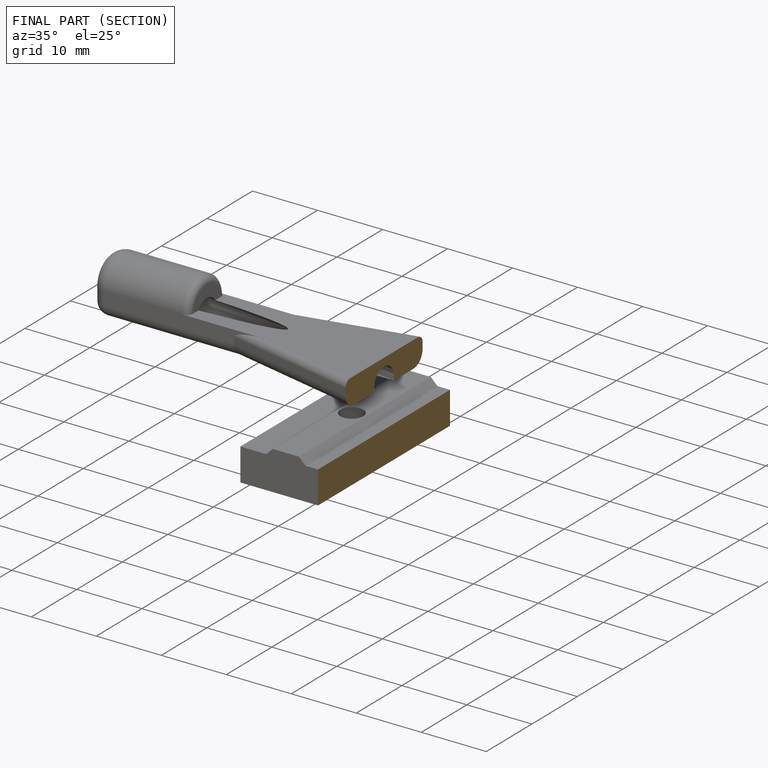
[diagram: finished part — half-section view (interior)]
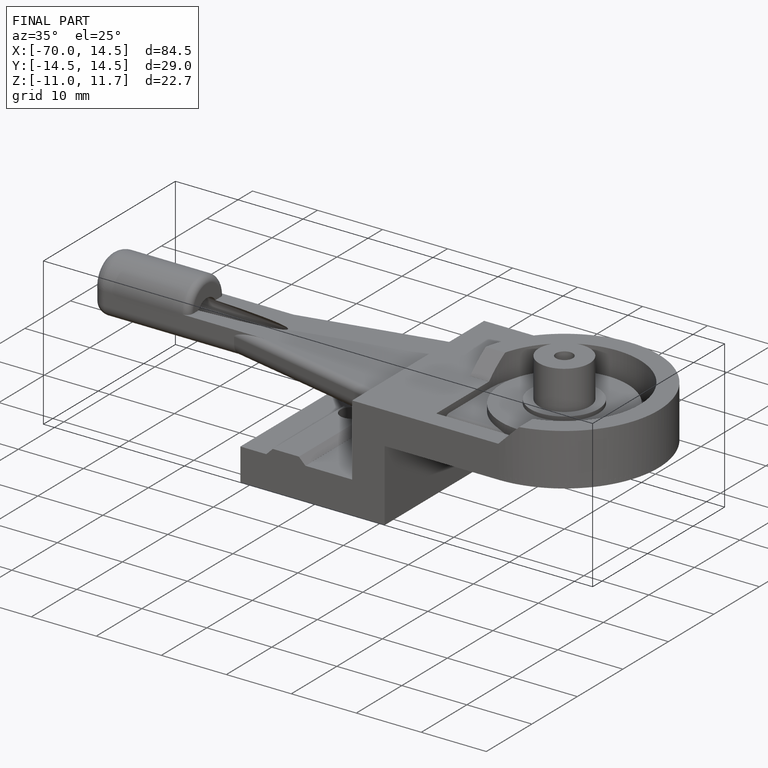
[diagram: finished part — iso view with bounding-box wireframe]
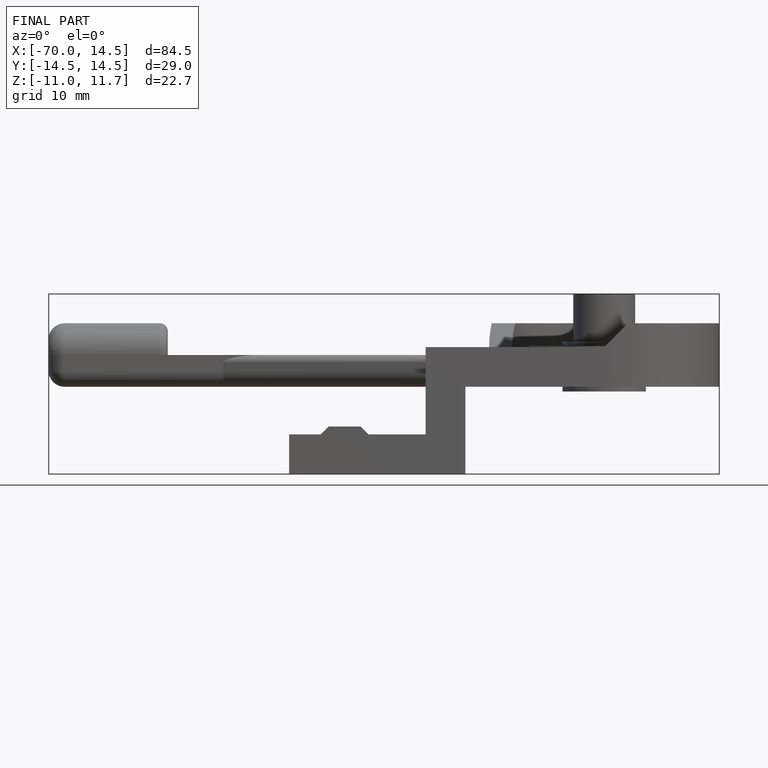
[diagram: finished part — front view with bounding-box wireframe]
